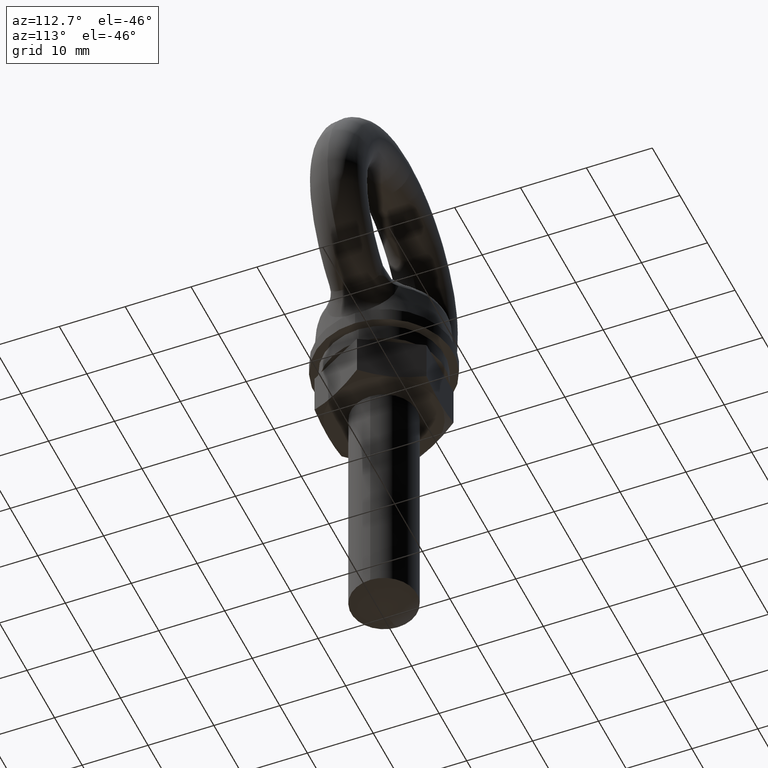
[diagram: clean part render]
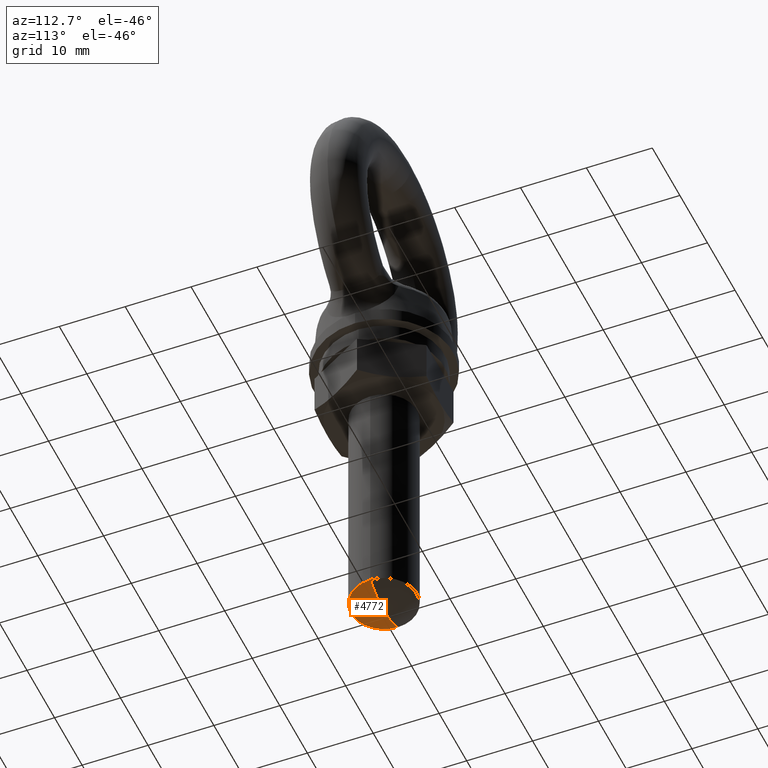
[diagram: same view with one face highlighted and labeled with its STEP entity id]
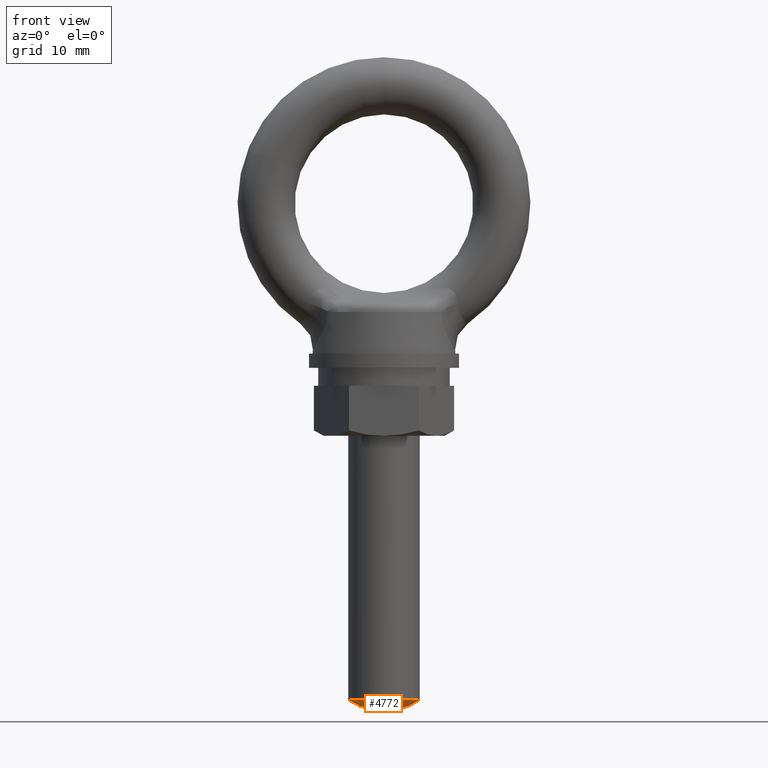
[diagram: same view with one face highlighted and labeled with its STEP entity id]
A machine part, auxiliary view. The second image highlights one B-rep face of the part: STEP entity #4772.
A second angle (front view) of the same face is appended — the face is thin or edge-on in the first view.
In plain terms, the highlighted spherical surface has radius 9.0833 mm.
Its self-contained STEP definition (entity closure, byte-faithful):
#1585 = DIRECTION ( 'NONE',  ( 0.0000000000000000000, 0.0000000000000000000, -1.000000000000000000 ) ) ;
#1586 = DIRECTION ( 'NONE',  ( 0.0000000000000000000, -1.000000000000000000, 0.0000000000000000000 ) ) ;
#1587 = CARTESIAN_POINT ( 'NONE',  ( 0.0000000000000000000, 0.0000000000000000000, -61.91667199999999800 ) ) ;
#1588 = AXIS2_PLACEMENT_3D ( 'NONE', #1587, #1586, #1585 ) ;
#1589 = CIRCLE ( 'NONE', #1588, 9.083333000000006800 ) ;
#1591 = CARTESIAN_POINT ( 'NONE',  ( -5.561753652842237700E-016, 0.0000000000000000000, -71.00000500000000200 ) ) ;
#1592 = DIRECTION ( 'NONE',  ( -1.000000000000000000, -1.224606353822377000E-016, 0.0000000000000000000 ) ) ;
#1593 = DIRECTION ( 'NONE',  ( -1.224606353822377300E-016, 1.000000000000000000, 0.0000000000000000000 ) ) ;
#1594 = CARTESIAN_POINT ( 'NONE',  ( 0.0000000000000000000, 0.0000000000000000000, -61.91667199999999800 ) ) ;
#1595 = AXIS2_PLACEMENT_3D ( 'NONE', #1594, #1593, #1592 ) ;
#1596 = CIRCLE ( 'NONE', #1595, 9.083333000000001400 ) ;
#1597 = CARTESIAN_POINT ( 'NONE',  ( 4.999999622219589500, 0.0000000000000000000, -69.50000518315189900 ) ) ;
#1619 = CARTESIAN_POINT ( 'NONE',  ( -4.999999622219589500, 6.123031537795731500E-016, -69.50000518315189900 ) ) ;
#3775 = DIRECTION ( 'NONE',  ( -1.000000000000000000, 0.0000000000000000000, 0.0000000000000000000 ) ) ;
#3776 = DIRECTION ( 'NONE',  ( 0.0000000000000000000, 1.000000000000000000, 0.0000000000000000000 ) ) ;
#3777 = CARTESIAN_POINT ( 'NONE',  ( 0.0000000000000000000, 0.0000000000000000000, -61.91667199999999800 ) ) ;
#3778 = AXIS2_PLACEMENT_3D ( 'NONE', #3777, #3776, #3775 ) ;
#3780 = SPHERICAL_SURFACE ( 'NONE', #3778, 9.083333000000001400 ) ;
#3781 = FACE_OUTER_BOUND ( 'NONE', #4356, .T. ) ;
#4346 = ORIENTED_EDGE ( 'NONE', *, *, #4364, .T. ) ;
#4356 = EDGE_LOOP ( 'NONE', ( #4358, #4346, #4798 ) ) ;
#4358 = ORIENTED_EDGE ( 'NONE', *, *, #4429, .F. ) ;
#4364 = EDGE_CURVE ( 'NONE', #4427, #4426, #5414, .T. ) ;
#4426 = VERTEX_POINT ( 'NONE', #1619 ) ;
#4427 = VERTEX_POINT ( 'NONE', #1597 ) ;
#4429 = EDGE_CURVE ( 'NONE', #4427, #4430, #1596, .T. ) ;
#4430 = VERTEX_POINT ( 'NONE', #1591 ) ;
#4432 = EDGE_CURVE ( 'NONE', #4426, #4430, #1589, .T. ) ;
#4772 = ADVANCED_FACE ( 'NONE', ( #3781 ), #3780, .T. ) ;
#4798 = ORIENTED_EDGE ( 'NONE', *, *, #4432, .T. ) ;
#5403 = DIRECTION ( 'NONE',  ( -1.000000000000000000, 0.0000000000000000000, 0.0000000000000000000 ) ) ;
#5404 = DIRECTION ( 'NONE',  ( 0.0000000000000000000, 0.0000000000000000000, -1.000000000000000000 ) ) ;
#5405 = CARTESIAN_POINT ( 'NONE',  ( 0.0000000000000000000, 0.0000000000000000000, -69.50000518315189900 ) ) ;
#5406 = AXIS2_PLACEMENT_3D ( 'NONE', #5405, #5404, #5403 ) ;
#5414 = CIRCLE ( 'NONE', #5406, 4.999999622219589500 ) ;